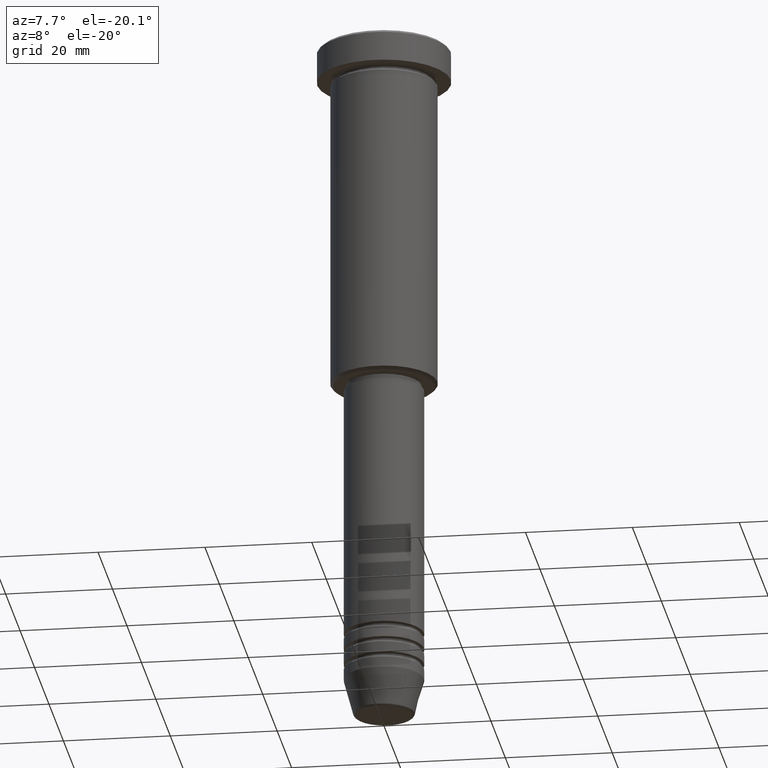
[diagram: clean part render]
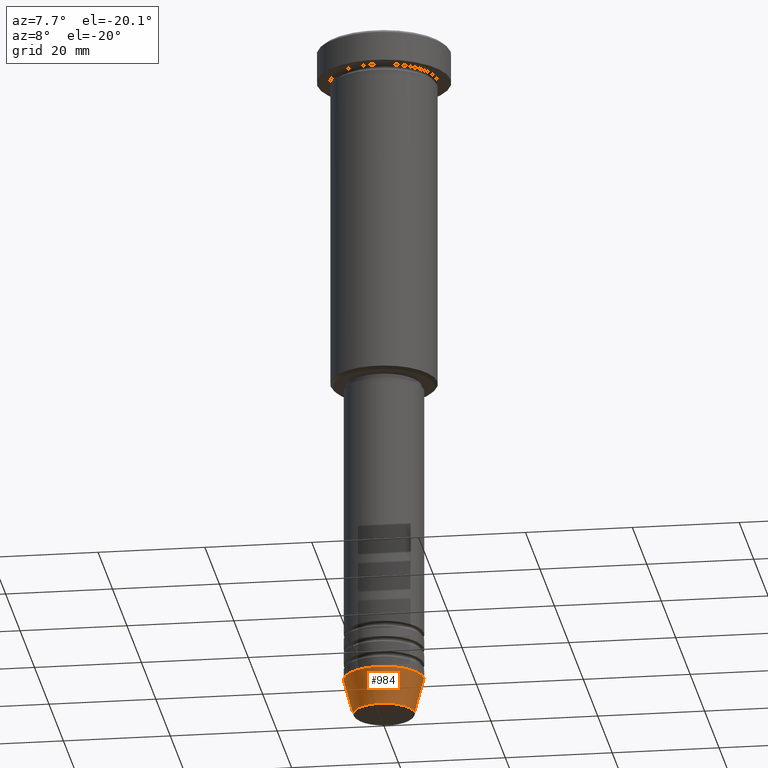
[diagram: same view with one face highlighted and labeled with its STEP entity id]
A machine part, auxiliary view. The second image highlights one B-rep face of the part: STEP entity #984.
In plain terms, the highlighted conical surface has half-angle 15 deg.
Its self-contained STEP definition (entity closure, byte-faithful):
#46 = ORIENTED_EDGE ( 'NONE', *, *, #274, .F. ) ;
#48 = CARTESIAN_POINT ( 'NONE',  ( -5.723655072137191269, 8.097153428560735915E-16, -130.6294095225512422 ) ) ;
#184 = CARTESIAN_POINT ( 'NONE',  ( -7.500000000000000000, 9.184850993605147944E-16, -124.0000000000000000 ) ) ;
#221 = EDGE_LOOP ( 'NONE', ( #278, #808, #231, #46 ) ) ;
#231 = ORIENTED_EDGE ( 'NONE', *, *, #730, .T. ) ;
#257 = VECTOR ( 'NONE', #588, 1000.000000000000000 ) ;
#274 = EDGE_CURVE ( 'NONE', #1016, #975, #449, .T. ) ;
#277 = LINE ( 'NONE', #184, #562 ) ;
#278 = ORIENTED_EDGE ( 'NONE', *, *, #397, .F. ) ;
#279 = CARTESIAN_POINT ( 'NONE',  ( 0.000000000000000000, 0.000000000000000000, -130.6294095225512422 ) ) ;
#280 = DIRECTION ( 'NONE',  ( -0.000000000000000000, -0.000000000000000000, 1.000000000000000000 ) ) ;
#294 = DIRECTION ( 'NONE',  ( 1.000000000000000000, 0.000000000000000000, 0.000000000000000000 ) ) ;
#298 = CARTESIAN_POINT ( 'NONE',  ( 0.000000000000000000, 0.000000000000000000, -124.0000000000000000 ) ) ;
#309 = AXIS2_PLACEMENT_3D ( 'NONE', #279, #628, #1002 ) ;
#392 = CARTESIAN_POINT ( 'NONE',  ( 5.723655072137191269, 0.000000000000000000, -130.6294095225512422 ) ) ;
#397 = EDGE_CURVE ( 'NONE', #861, #1016, #277, .T. ) ;
#449 = CIRCLE ( 'NONE', #924, 7.500000000000000000 ) ;
#465 = AXIS2_PLACEMENT_3D ( 'NONE', #474, #280, #567 ) ;
#474 = CARTESIAN_POINT ( 'NONE',  ( 0.000000000000000000, 0.000000000000000000, -124.0000000000000000 ) ) ;
#547 = CIRCLE ( 'NONE', #309, 5.723655072137191269 ) ;
#552 = EDGE_CURVE ( 'NONE', #861, #1102, #547, .T. ) ;
#562 = VECTOR ( 'NONE', #921, 1000.000000000000000 ) ;
#567 = DIRECTION ( 'NONE',  ( 1.000000000000000000, 0.000000000000000000, 0.000000000000000000 ) ) ;
#588 = DIRECTION ( 'NONE',  ( 0.2588190451025213501, 0.000000000000000000, 0.9659258262890680902 ) ) ;
#628 = DIRECTION ( 'NONE',  ( -0.000000000000000000, -0.000000000000000000, 1.000000000000000000 ) ) ;
#629 = CARTESIAN_POINT ( 'NONE',  ( 7.500000000000000000, 0.000000000000000000, -124.0000000000000000 ) ) ;
#640 = FACE_OUTER_BOUND ( 'NONE', #221, .T. ) ;
#655 = DIRECTION ( 'NONE',  ( -0.000000000000000000, -0.000000000000000000, 1.000000000000000000 ) ) ;
#726 = CONICAL_SURFACE ( 'NONE', #465, 7.500000000000000000, 0.2617993877991500740 ) ;
#730 = EDGE_CURVE ( 'NONE', #1102, #975, #857, .T. ) ;
#808 = ORIENTED_EDGE ( 'NONE', *, *, #552, .T. ) ;
#857 = LINE ( 'NONE', #937, #257 ) ;
#861 = VERTEX_POINT ( 'NONE', #48 ) ;
#921 = DIRECTION ( 'NONE',  ( -0.2588190451025213501, 3.169619151431772337E-17, 0.9659258262890680902 ) ) ;
#924 = AXIS2_PLACEMENT_3D ( 'NONE', #298, #655, #294 ) ;
#937 = CARTESIAN_POINT ( 'NONE',  ( 7.500000000000000000, 0.000000000000000000, -124.0000000000000000 ) ) ;
#975 = VERTEX_POINT ( 'NONE', #629 ) ;
#984 = ADVANCED_FACE ( 'NONE', ( #640 ), #726, .T. ) ;
#1002 = DIRECTION ( 'NONE',  ( 1.000000000000000000, 0.000000000000000000, 0.000000000000000000 ) ) ;
#1016 = VERTEX_POINT ( 'NONE', #1080 ) ;
#1080 = CARTESIAN_POINT ( 'NONE',  ( -7.500000000000000000, 9.184850993605147944E-16, -124.0000000000000000 ) ) ;
#1102 = VERTEX_POINT ( 'NONE', #392 ) ;